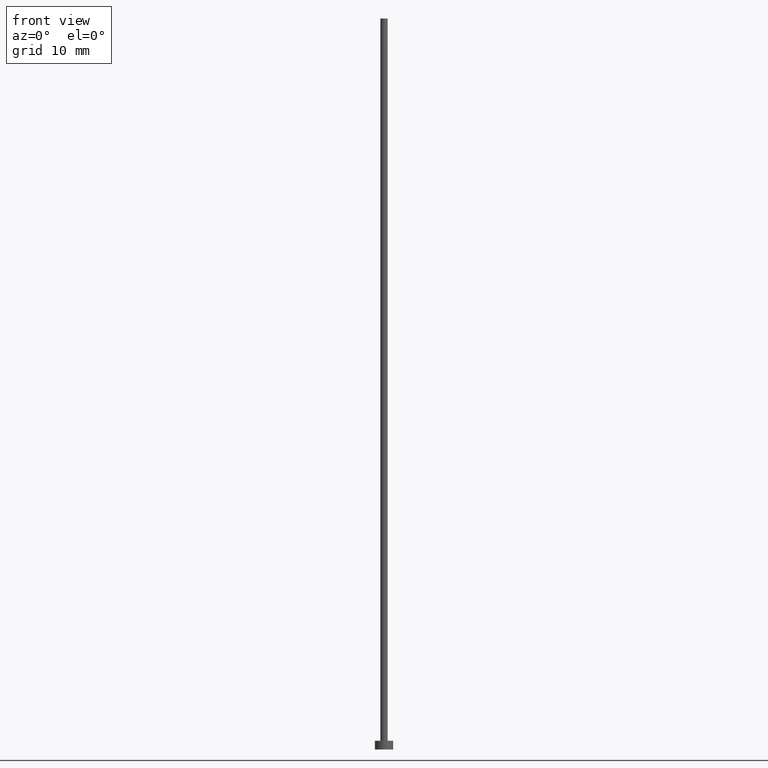
[diagram: clean part render]
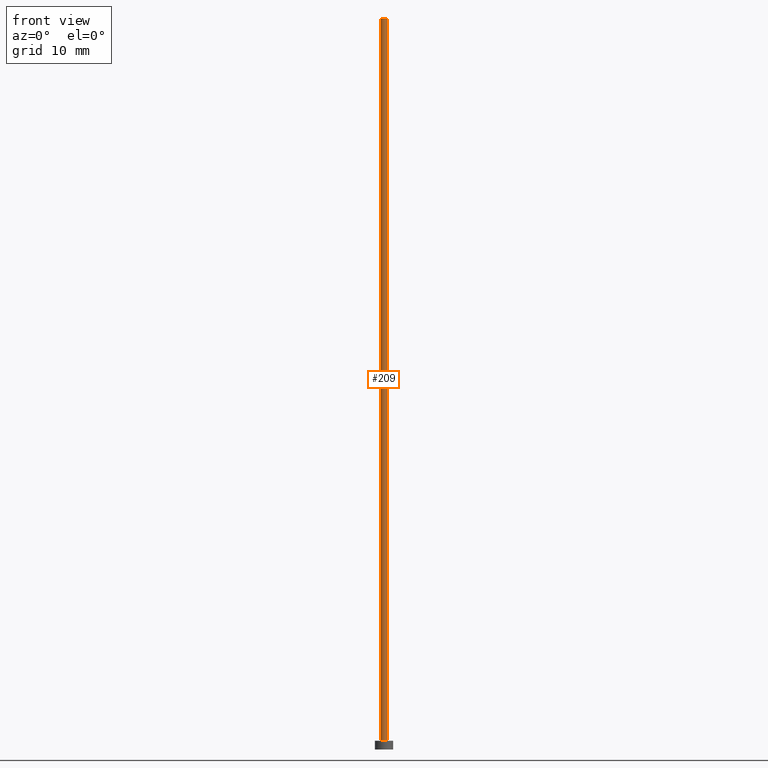
[diagram: same view with one face highlighted and labeled with its STEP entity id]
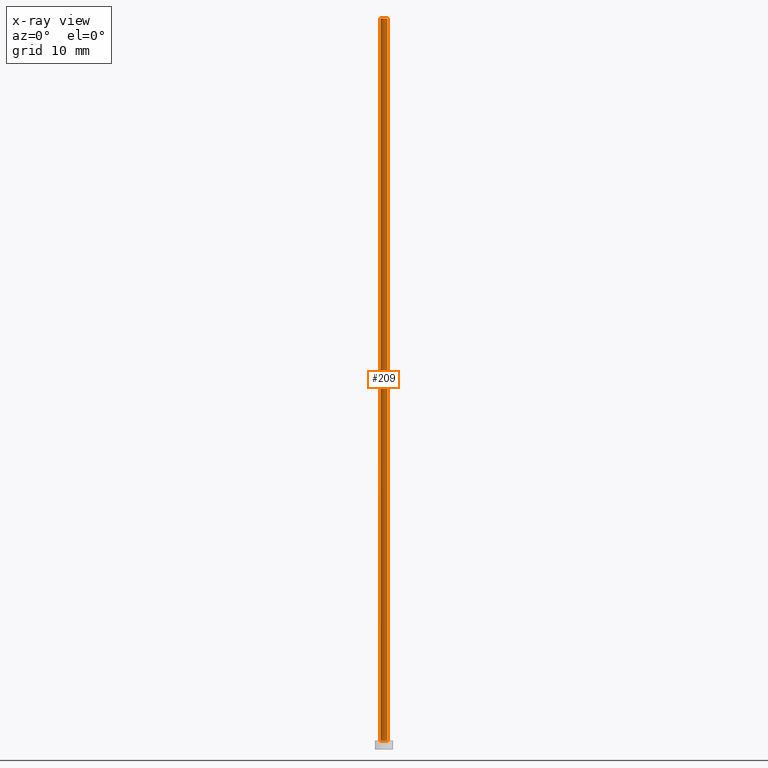
[diagram: x-ray of the same camera — body ghosted, the highlighted face saturated]
A machine part, front view. The second image highlights one B-rep face of the part: STEP entity #209.
The next image is the same camera in x-ray: the body ghosted, the highlighted face saturated — about 0% of this face is hidden behind the body in this view.
In plain terms, the highlighted cylindrical surface (edge-blend (fillet) strip) has radius 0.5 mm, axis along (-0, -0, -1).
Its self-contained STEP definition (entity closure, byte-faithful):
#15 = VECTOR ( 'NONE', #44, 1000.000000000000000 ) ;
#19 = LINE ( 'NONE', #37, #33 ) ;
#24 = AXIS2_PLACEMENT_3D ( 'NONE', #27, #109, #148 ) ;
#27 = CARTESIAN_POINT ( 'NONE',  ( 0.000000000000000000, 0.000000000000000000, 1.199999999999999956 ) ) ;
#33 = VECTOR ( 'NONE', #156, 1000.000000000000000 ) ;
#35 = CIRCLE ( 'NONE', #52, 0.5000000000000000000 ) ;
#37 = CARTESIAN_POINT ( 'NONE',  ( 0.5000000000000000000, 6.123233995736766036E-17, 100.0000000000000000 ) ) ;
#44 = DIRECTION ( 'NONE',  ( -0.000000000000000000, -0.000000000000000000, -1.000000000000000000 ) ) ;
#46 = CYLINDRICAL_SURFACE ( 'NONE', #250, 0.5000000000000000000 ) ;
#47 = EDGE_CURVE ( 'NONE', #254, #95, #35, .T. ) ;
#52 = AXIS2_PLACEMENT_3D ( 'NONE', #98, #217, #252 ) ;
#54 = ORIENTED_EDGE ( 'NONE', *, *, #248, .T. ) ;
#62 = EDGE_CURVE ( 'NONE', #95, #173, #19, .T. ) ;
#84 = DIRECTION ( 'NONE',  ( -1.000000000000000000, 0.000000000000000000, 0.000000000000000000 ) ) ;
#86 = CARTESIAN_POINT ( 'NONE',  ( -0.5000000000000000000, 0.000000000000000000, 100.0000000000000000 ) ) ;
#88 = CARTESIAN_POINT ( 'NONE',  ( 0.5000000000000000000, 6.123233995736766036E-17, 1.199999999999999956 ) ) ;
#95 = VERTEX_POINT ( 'NONE', #117 ) ;
#98 = CARTESIAN_POINT ( 'NONE',  ( 0.000000000000000000, 0.000000000000000000, 100.0000000000000000 ) ) ;
#108 = DIRECTION ( 'NONE',  ( -0.000000000000000000, -0.000000000000000000, -1.000000000000000000 ) ) ;
#109 = DIRECTION ( 'NONE',  ( 0.000000000000000000, 0.000000000000000000, 1.000000000000000000 ) ) ;
#114 = ORIENTED_EDGE ( 'NONE', *, *, #62, .F. ) ;
#116 = EDGE_LOOP ( 'NONE', ( #114, #255, #54, #138 ) ) ;
#117 = CARTESIAN_POINT ( 'NONE',  ( 0.5000000000000000000, 6.123233995736766036E-17, 100.0000000000000000 ) ) ;
#119 = CIRCLE ( 'NONE', #24, 0.5000000000000000000 ) ;
#124 = CARTESIAN_POINT ( 'NONE',  ( 0.000000000000000000, 0.000000000000000000, 100.0000000000000000 ) ) ;
#137 = EDGE_CURVE ( 'NONE', #251, #173, #119, .T. ) ;
#138 = ORIENTED_EDGE ( 'NONE', *, *, #137, .T. ) ;
#148 = DIRECTION ( 'NONE',  ( 1.000000000000000000, 0.000000000000000000, 0.000000000000000000 ) ) ;
#156 = DIRECTION ( 'NONE',  ( -0.000000000000000000, -0.000000000000000000, -1.000000000000000000 ) ) ;
#169 = LINE ( 'NONE', #239, #15 ) ;
#173 = VERTEX_POINT ( 'NONE', #88 ) ;
#182 = FACE_OUTER_BOUND ( 'NONE', #116, .T. ) ;
#209 = ADVANCED_FACE ( 'NONE', ( #182 ), #46, .T. ) ;
#217 = DIRECTION ( 'NONE',  ( 0.000000000000000000, 0.000000000000000000, 1.000000000000000000 ) ) ;
#239 = CARTESIAN_POINT ( 'NONE',  ( -0.5000000000000000000, 0.000000000000000000, 100.0000000000000000 ) ) ;
#240 = CARTESIAN_POINT ( 'NONE',  ( -0.5000000000000000000, 0.000000000000000000, 1.199999999999999956 ) ) ;
#248 = EDGE_CURVE ( 'NONE', #254, #251, #169, .T. ) ;
#250 = AXIS2_PLACEMENT_3D ( 'NONE', #124, #108, #84 ) ;
#251 = VERTEX_POINT ( 'NONE', #240 ) ;
#252 = DIRECTION ( 'NONE',  ( 1.000000000000000000, 0.000000000000000000, 0.000000000000000000 ) ) ;
#254 = VERTEX_POINT ( 'NONE', #86 ) ;
#255 = ORIENTED_EDGE ( 'NONE', *, *, #47, .F. ) ;